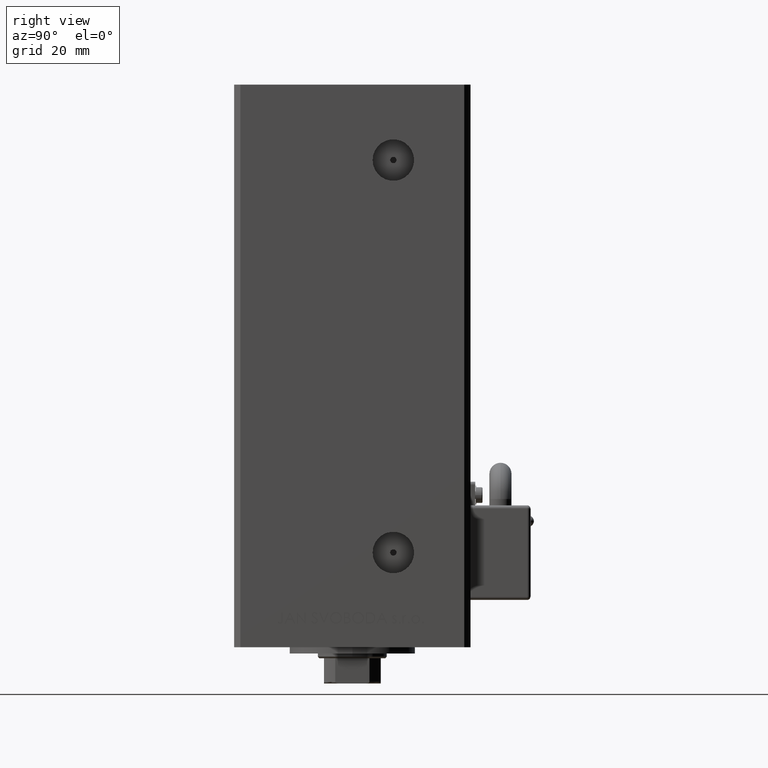
[diagram: clean part render]
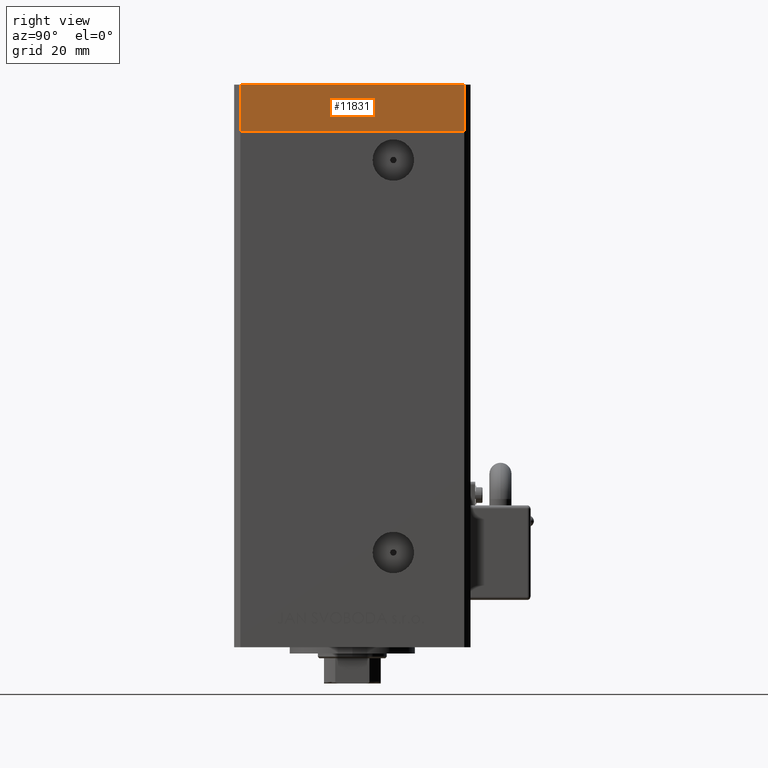
[diagram: same view with one face highlighted and labeled with its STEP entity id]
A machine part, right view. The second image highlights one B-rep face of the part: STEP entity #11831.
In plain terms, the highlighted planar face has unit normal (1, 0, 0).
Its self-contained STEP definition (entity closure, byte-faithful):
#1772 = DIRECTION ( 'NONE',  ( 1.000000000000000000, 1.172770800660376741E-15, -0.000000000000000000 ) ) ;
#3774 = VERTEX_POINT ( 'NONE', #47351 ) ;
#5029 = DIRECTION ( 'NONE',  ( 0.000000000000000000, 0.000000000000000000, 1.000000000000000000 ) ) ;
#9982 = EDGE_CURVE ( 'NONE', #12061, #46466, #45224, .T. ) ;
#10995 = CARTESIAN_POINT ( 'NONE',  ( 42.50000000000000711, -35.50000000000000000, -15.00000000000000000 ) ) ;
#11502 = LINE ( 'NONE', #10995, #23599 ) ;
#11831 = ADVANCED_FACE ( 'NONE', ( #22609 ), #46896, .T. ) ;
#12061 = VERTEX_POINT ( 'NONE', #31302 ) ;
#14446 = CARTESIAN_POINT ( 'NONE',  ( 42.50000000000000711, -35.50000000000000000, -15.00000000000000000 ) ) ;
#16141 = CARTESIAN_POINT ( 'NONE',  ( 42.49999999999992895, 35.50000000000000000, -15.00000000000000000 ) ) ;
#18859 = CARTESIAN_POINT ( 'NONE',  ( 42.50000000000000711, -35.50000000000000000, -15.00000000000000000 ) ) ;
#20088 = CARTESIAN_POINT ( 'NONE',  ( 42.50000000000000711, -35.50000000000000000, -15.00000000000000000 ) ) ;
#22609 = FACE_OUTER_BOUND ( 'NONE', #37757, .T. ) ;
#23454 = VECTOR ( 'NONE', #5029, 1000.000000000000000 ) ;
#23599 = VECTOR ( 'NONE', #47421, 1000.000000000000000 ) ;
#23620 = VERTEX_POINT ( 'NONE', #18859 ) ;
#25424 = DIRECTION ( 'NONE',  ( -1.172770800660376741E-15, 1.000000000000000000, 0.000000000000000000 ) ) ;
#26056 = DIRECTION ( 'NONE',  ( -1.172770800660376741E-15, 1.000000000000000000, 0.000000000000000000 ) ) ;
#28477 = ORIENTED_EDGE ( 'NONE', *, *, #45443, .T. ) ;
#31302 = CARTESIAN_POINT ( 'NONE',  ( 42.50000000000000711, -35.50000000000000000, 0.000000000000000000 ) ) ;
#33327 = CARTESIAN_POINT ( 'NONE',  ( 42.50000000000000711, -35.50000000000000000, 0.000000000000000000 ) ) ;
#35140 = CARTESIAN_POINT ( 'NONE',  ( 42.49999999999992895, 35.50000000000000000, 0.000000000000000000 ) ) ;
#35422 = ORIENTED_EDGE ( 'NONE', *, *, #50044, .T. ) ;
#36245 = VECTOR ( 'NONE', #25424, 1000.000000000000000 ) ;
#37757 = EDGE_LOOP ( 'NONE', ( #42848, #41396, #35422, #28477 ) ) ;
#38598 = VECTOR ( 'NONE', #44358, 1000.000000000000000 ) ;
#41177 = LINE ( 'NONE', #20088, #23454 ) ;
#41396 = ORIENTED_EDGE ( 'NONE', *, *, #45473, .F. ) ;
#42848 = ORIENTED_EDGE ( 'NONE', *, *, #9982, .F. ) ;
#44358 = DIRECTION ( 'NONE',  ( 0.000000000000000000, 0.000000000000000000, 1.000000000000000000 ) ) ;
#44624 = LINE ( 'NONE', #16141, #38598 ) ;
#44776 = AXIS2_PLACEMENT_3D ( 'NONE', #14446, #1772, #26056 ) ;
#45224 = LINE ( 'NONE', #33327, #36245 ) ;
#45443 = EDGE_CURVE ( 'NONE', #3774, #46466, #44624, .T. ) ;
#45473 = EDGE_CURVE ( 'NONE', #23620, #12061, #41177, .T. ) ;
#46466 = VERTEX_POINT ( 'NONE', #35140 ) ;
#46896 = PLANE ( 'NONE',  #44776 ) ;
#47351 = CARTESIAN_POINT ( 'NONE',  ( 42.49999999999992895, 35.50000000000000000, -15.00000000000000000 ) ) ;
#47421 = DIRECTION ( 'NONE',  ( -1.172770800660376741E-15, 1.000000000000000000, 0.000000000000000000 ) ) ;
#50044 = EDGE_CURVE ( 'NONE', #23620, #3774, #11502, .T. ) ;